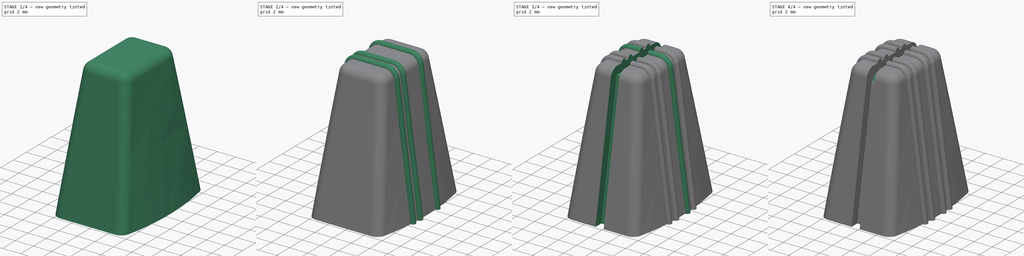
[diagram: build sequence overview — one tinted view per stage of 4, left to right]
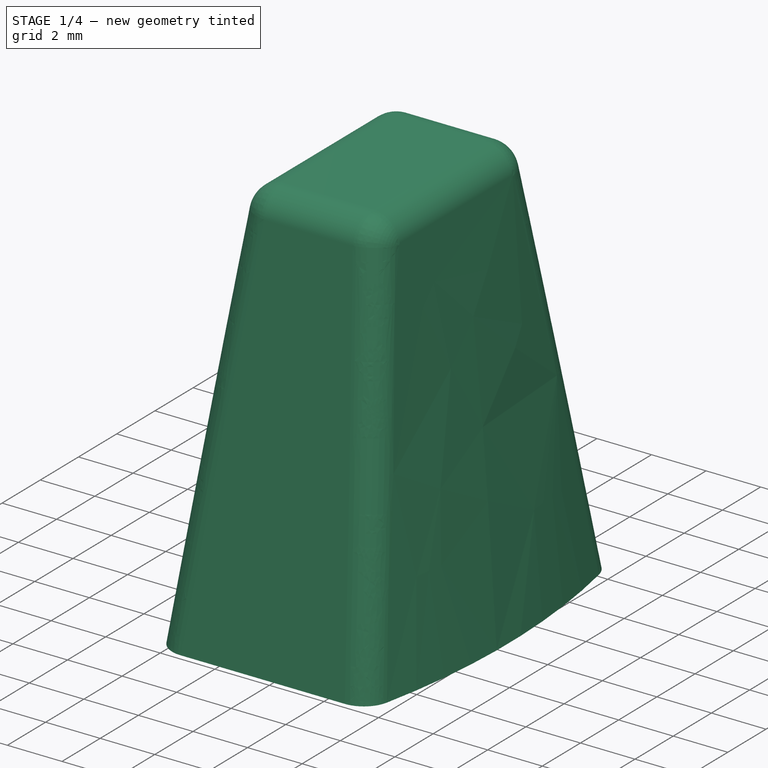
[diagram: stage 1 of 4 — iso view after this stage's code; geometry added in this stage tinted green]
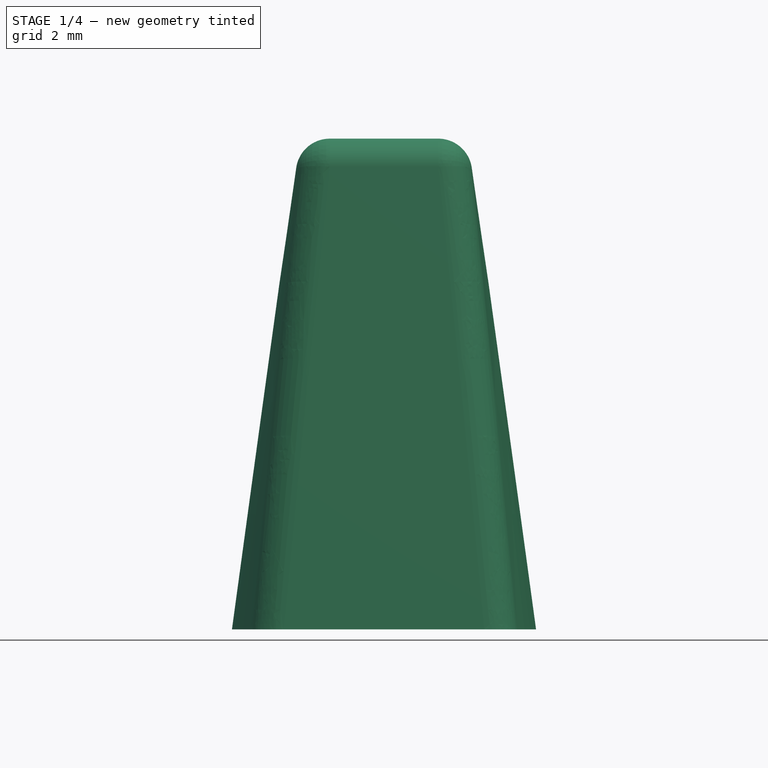
[diagram: stage 1 of 4 — front view after this stage's code; geometry added in this stage tinted green]
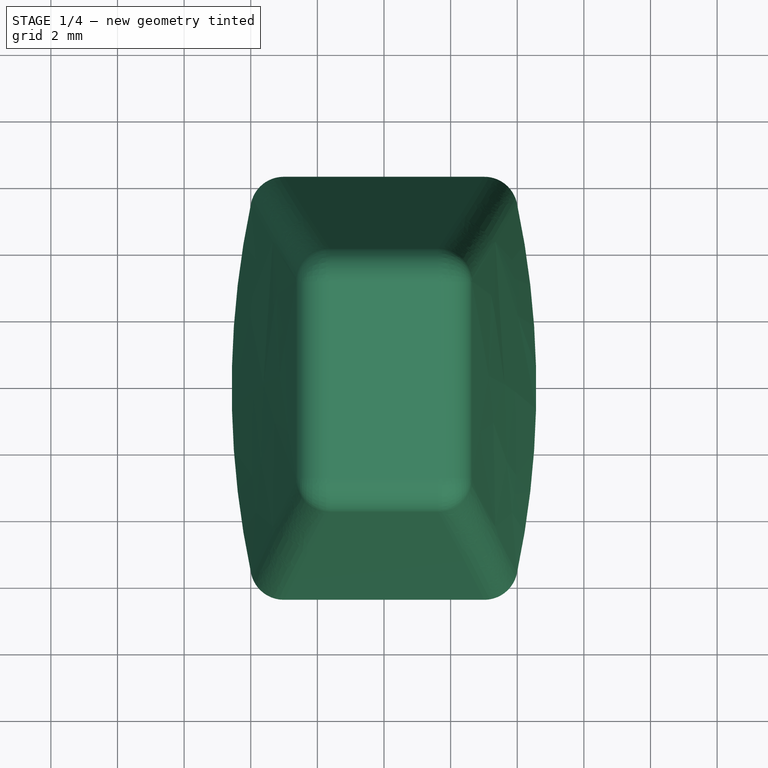
[diagram: stage 1 of 4 — top view after this stage's code; geometry added in this stage tinted green]
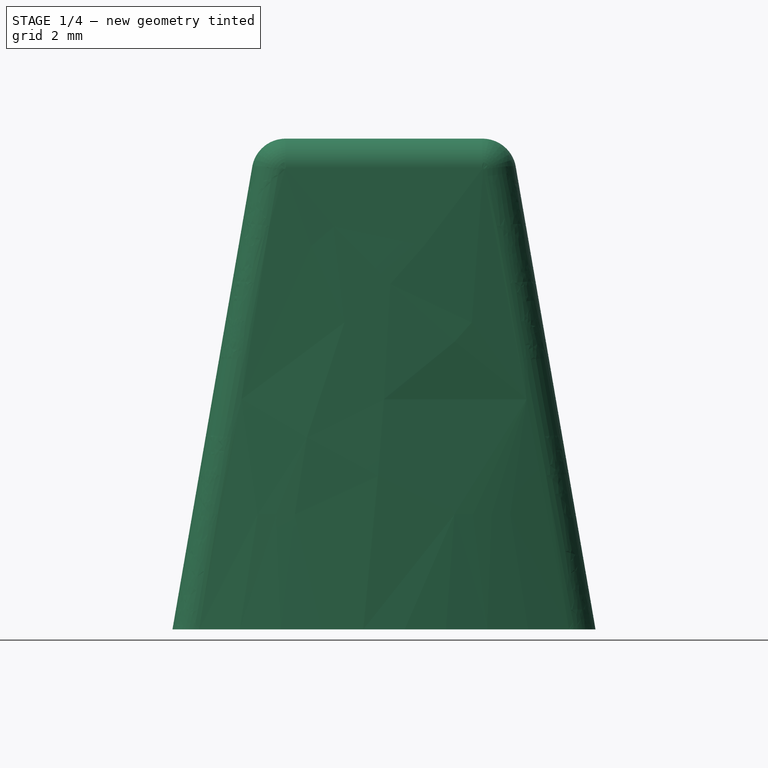
[diagram: stage 1 of 4 — right view after this stage's code; geometry added in this stage tinted green]
FCSTD DOCUMENT  (FreeCAD 0.20R29410 (Git))
Label: ARP_Quartet_Control_Knob
Comment: Slider control knob for the ARP Quartet / Siel Orchestra
License: All rights reserved
LicenseURL: http://en.wikipedia.org/wiki/All_rights_reserved
objects: Sketcher::SketchObject×17, PartDesign::Plane×5, PartDesign::AdditivePipe×4, PartDesign::Fillet×3, PartDesign::AdditiveLoft×1, PartDesign::SubtractivePipe×1, PartDesign::SubtractiveLoft×1, PartDesign::Body×1
note: 43 computed .brp shape members not serialized (recipe doc carries the construction recipe); baked Part::Feature solids carry a one-line shape summary decoded from their .brp

FEATURE [Sketcher::SketchObject] Sketch  label="Base"
  FullyConstrained = true
  MapMode = 5
  Support = -> [XY_Plane]
  sketch-geometry (9):
    g0: LineSegment StartX=-3.81 StartY=6.35 StartZ=0 EndX=3.81 EndY=6.35 EndZ=0
    g1: LineSegment StartX=-3.81 StartY=-6.35 StartZ=0 EndX=3.81 EndY=-6.35 EndZ=0
    g2: ArcOfCircle CenterX=-22.2673 CenterY=0 CenterZ=0 NormalX=0 NormalY=0 NormalZ=1 AngleXU=0 Radius=26.8393 StartAngle=6.04433 EndAngle=6.52204
    g3: ArcOfCircle CenterX=22.2673 CenterY=-1.1e-15 CenterZ=0 NormalX=0 NormalY=0 NormalZ=1 AngleXU=0 Radius=26.8393 StartAngle=2.90273 EndAngle=3.38045
    g4: GeomPoint X=-4.572 Y=0 Z=0
    g5: GeomPoint X=-4.572 Y=0 Z=0
    g6: GeomPoint X=4.572 Y=0 Z=0
    g7: GeomPoint X=4.572 Y=0 Z=0
    g8: GeomPoint X=4.572 Y=0 Z=0
  constraints (20):
    c: Horizontal(g0)
    c: Equal(g0,g1)
    c: DistanceX(g0,g0) = 7.62
    c: Vertical(g0,g1)
    c: Coincident(g2,g0)
    c: Coincident(g2,g1)
    c: Coincident(g3,g0)
    c: Coincident(g3,g1)
    c: DistanceY(g1,g0) = 12.7
    c: Equal(g3,g2)
    c: PointOnObject(g4,g3)
    c: PointOnObject(g5,g-1)
    c: Coincident(g4,g5)
    c: PointOnObject(g6,g2)
    c: PointOnObject(g7,g-1)
    c: Coincident(g8,g6)
    c: Coincident(g7,g6)
    c: DistanceX(g4,g6) = 9.144
    c: Horizontal(g2,g-1)
    c: Symmetric(g1,g1,g-2)
FEATURE [PartDesign::Plane] DatumPlane  label="DatumPlaneTop"
  Length = 60
  MapMode = 2
  Placement = pos=(0,0,14.732) rot=(0,0,1;0rad)
  ResizeMode = 0
  Width = 60
FEATURE [Sketcher::SketchObject] Sketch001  label="Top"
  FullyConstrained = true
  MapMode = 5
  Placement = pos=(0,0,14.732) rot=(0,0,1;0rad)
  Support = -> [DatumPlane]
  sketch-geometry (4):
    g0: LineSegment StartX=-2.54 StartY=3.81 StartZ=0 EndX=2.54 EndY=3.81 EndZ=0
    g1: LineSegment StartX=2.54 StartY=3.81 StartZ=0 EndX=2.54 EndY=-3.81 EndZ=0
    g2: LineSegment StartX=2.54 StartY=-3.81 StartZ=0 EndX=-2.54 EndY=-3.81 EndZ=0
    g3: LineSegment StartX=-2.54 StartY=-3.81 StartZ=0 EndX=-2.54 EndY=3.81 EndZ=0
  constraints (10):
    c: Coincident(g0,g1)
    c: Coincident(g1,g2)
    c: Coincident(g2,g3)
    c: Coincident(g3,g0)
    c: Horizontal(g2)
    c: Vertical(g1)
    c: DistanceX(g0,g0) = 5.08
    c: DistanceY(g1,g0) = 7.62
    c: Symmetric(g0,g0,g-2)
    c: Symmetric(g0,g2,g-1)
FEATURE [PartDesign::AdditiveLoft] AdditiveLoft  label="MainBodyLoft"
  Closed = true
  Profile = -> Sketch
  Ruled = false
  Sections = -> [Sketch001]
FEATURE [PartDesign::Fillet] Fillet
  Base = -> AdditiveLoft [Edge6,Edge7,Edge12,Face3,Edge10,Edge5,Edge11]
  BaseFeature = -> AdditiveLoft
  Radius = 1.016
  Refine = true
  SupportTransform = false
  UseAllEdges = false
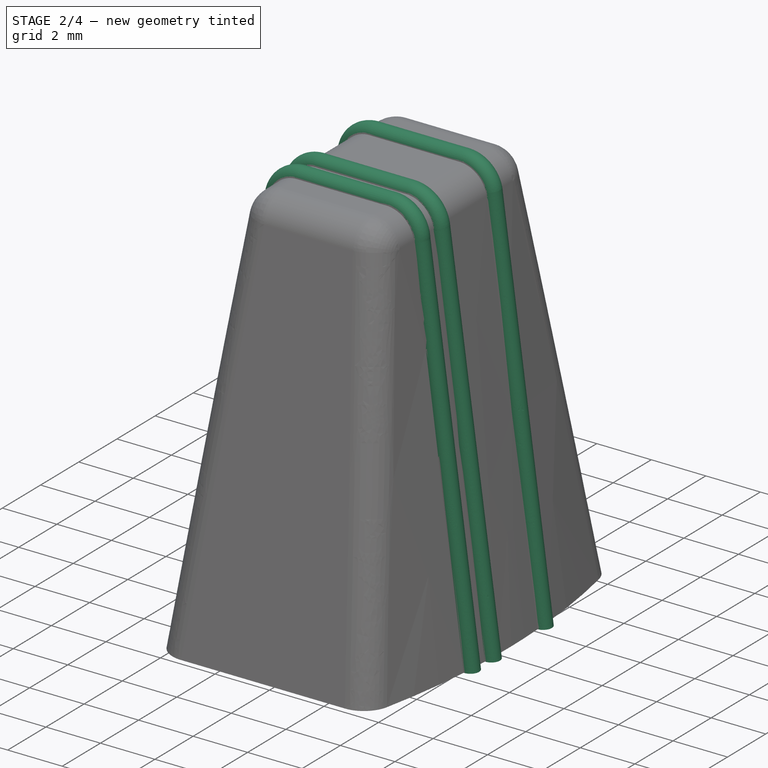
[diagram: stage 2 of 4 — iso view after this stage's code; geometry added in this stage tinted green]
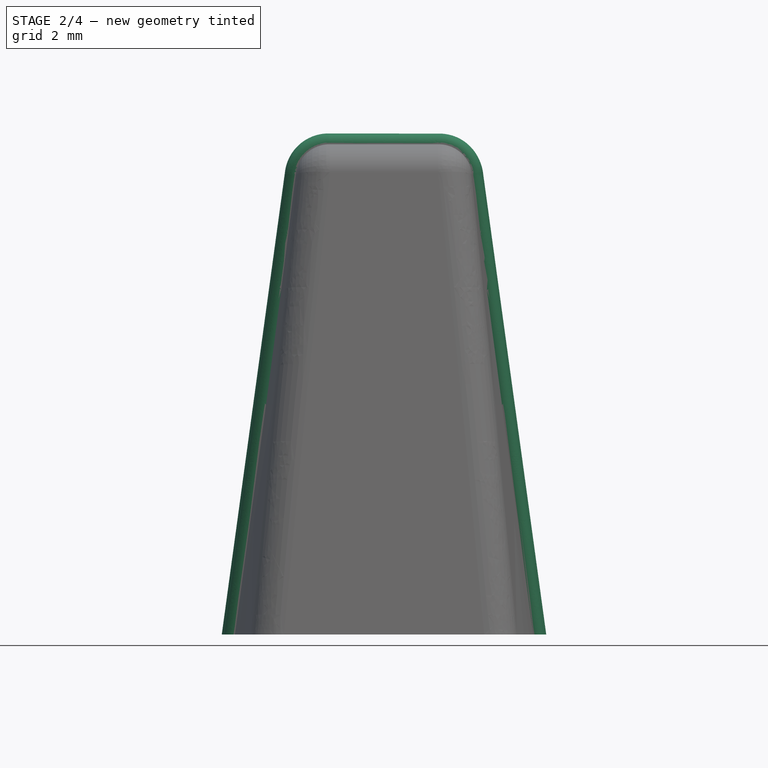
[diagram: stage 2 of 4 — front view after this stage's code; geometry added in this stage tinted green]
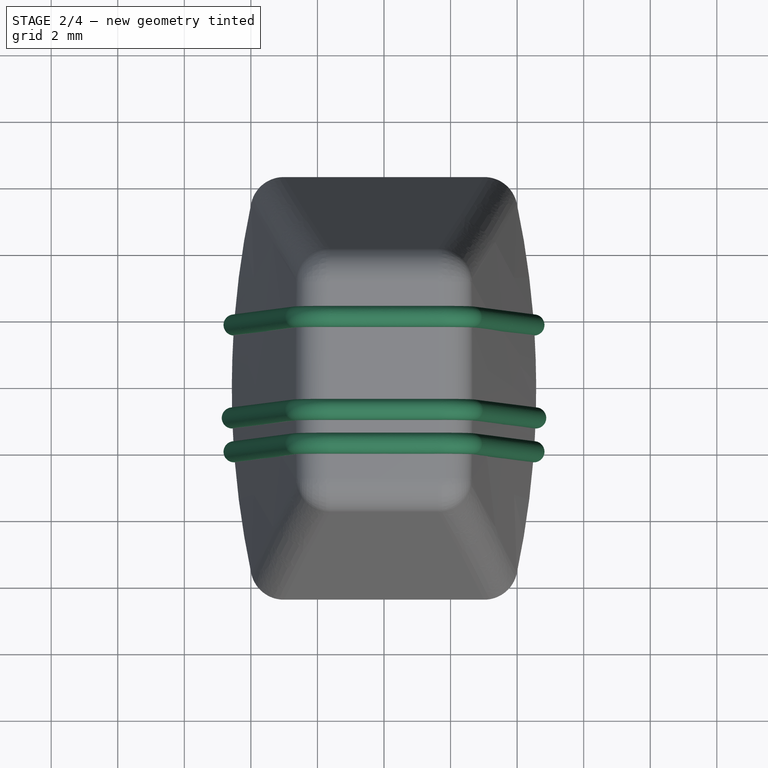
[diagram: stage 2 of 4 — top view after this stage's code; geometry added in this stage tinted green]
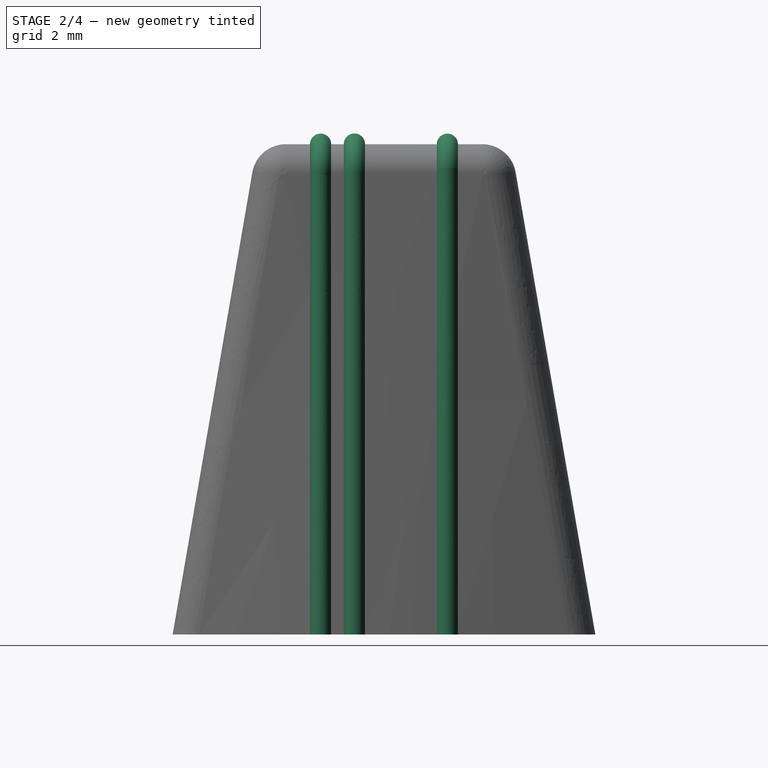
[diagram: stage 2 of 4 — right view after this stage's code; geometry added in this stage tinted green]
FEATURE [PartDesign::Plane] DatumPlane001  label="DatumPlane35"
  AttachmentOffset = pos=(0,0,1.905) rot=(0,0,1;0rad)
  Length = 60
  MapMode = 2
  Placement = pos=(0,-1.905,-4e-16) rot=(1,0,0;1.5708rad)
  ResizeMode = 0
  Support = -> [XZ_Plane]
  Width = 60
FEATURE [Sketcher::SketchObject] Sketch003  label="PipePath35"
  FullyConstrained = false
  MapMode = 5
  Placement = pos=(0,-1.905,-4e-16) rot=(1,0,0;1.5708rad)
  Support = -> [DatumPlane001]
  sketch-geometry (6):
    g0: LineSegment StartX=-4.52822 StartY=0 StartZ=0 EndX=4.57084 EndY=0 EndZ=0
    g1: LineSegment StartX=-4.52822 StartY=0 StartZ=0 EndX=-2.65166 EndY=13.8597 EndZ=0
    g2: LineSegment StartX=4.57084 StartY=0 StartZ=0 EndX=2.65519 EndY=13.8616 EndZ=0
    g3: LineSegment StartX=1.64108 StartY=14.7311 StartZ=0 EndX=-1.64151 EndY=14.7311 EndZ=0
    g4: ArcOfCircle CenterX=-1.6687 CenterY=13.7415 CenterZ=0 NormalX=0 NormalY=0 NormalZ=1 AngleXU=0 Radius=0.990046 StartAngle=1.54333 EndAngle=3.02187
    g5: ArcOfCircle CenterX=1.63453 CenterY=13.6973 CenterZ=0 NormalX=0 NormalY=0 NormalZ=1 AngleXU=0 Radius=1.03381 StartAngle=0.159613 EndAngle=1.56446
  constraints (9):
    c: PointOnObject(g0,g-1)
    c: Horizontal(g0)
    c: Coincident(g1,g0)
    c: Coincident(g2,g0)
    c: Horizontal(g3)
    c: Coincident(g4,g1)
    c: Coincident(g4,g3)
    c: Coincident(g5,g2)
    c: Coincident(g5,g3)
FEATURE [Sketcher::SketchObject] Sketch004  label="Bump_2_left"
  ExternalGeometry = -> [Fillet]
  FullyConstrained = true
  MapMode = 5
  Placement = pos=(0,0,0) rot=(1,0,0;3.14159rad)
  Support = -> [Fillet]
  sketch-geometry (2):
    g0: GeomPoint X=-4.55727 Y=0.889 Z=0
    g1: Circle CenterX=-4.55727 CenterY=0.889 CenterZ=0 NormalX=0 NormalY=0 NormalZ=1 AngleXU=0 Radius=0.3175
  constraints (4):
    c: PointOnObject(g0,g-3)
    c: DistanceY(g-1,g0) = 0.889
    c: Radius(g1) = 0.3175
    c: Coincident(g1,g0)
FEATURE [Sketcher::SketchObject] Sketch005  label="Bump_2_right"
  ExternalGeometry = -> [Fillet]
  FullyConstrained = true
  MapMode = 5
  Placement = pos=(0,0,0) rot=(1,0,0;3.14159rad)
  Support = -> [Fillet]
  sketch-geometry (2):
    g0: GeomPoint X=4.55727 Y=0.889 Z=0
    g1: Circle CenterX=4.55727 CenterY=0.889 CenterZ=0 NormalX=0 NormalY=0 NormalZ=1 AngleXU=0 Radius=0.3175
  constraints (4):
    c: PointOnObject(g0,g-3)
    c: Radius(g1) = 0.3175
    c: Coincident(g0,g1)
    c: DistanceY(g-1,g1) = 0.889
FEATURE [PartDesign::AdditivePipe] AdditivePipe  label="AdditivePipe+35"
  AuxilleryCurvelinear = true
  AuxillerySpineTangent = false
  BaseFeature = -> Fillet
  Binormal = (0,0,0)
  Mode = 0
  Profile = -> Sketch004
  Sections = -> [Sketch005]
  Spine = -> Sketch003 [Edge6,Edge5,Edge4,Edge3,Edge2]
  SpineTangent = false
  Transformation = 1
  Transition = 0
FEATURE [Sketcher::SketchObject] Sketch006  label="Bump_1_left"
  ExternalGeometry = -> [AdditivePipe]
  FullyConstrained = true
  MapMode = 5
  Placement = pos=(0,0,0) rot=(1,0,0;3.14159rad)
  Support = -> [AdditivePipe]
  sketch-geometry (2):
    g0: GeomPoint X=-4.50431 Y=1.905 Z=0
    g1: Circle CenterX=-4.50431 CenterY=1.905 CenterZ=0 NormalX=0 NormalY=0 NormalZ=1 AngleXU=0 Radius=0.3175
  constraints (4):
    c: PointOnObject(g0,g-3)
    c: Coincident(g1,g0)
    c: DistanceY(g-1,g1) = 1.905
    c: Radius(g1) = 0.3175
FEATURE [Sketcher::SketchObject] Sketch007  label="Bump_1_right"
  ExternalGeometry = -> [AdditivePipe]
  FullyConstrained = true
  MapMode = 5
  Placement = pos=(0,0,0) rot=(1,0,0;3.14159rad)
  Support = -> [AdditivePipe]
  sketch-geometry (2):
    g0: GeomPoint X=4.50431 Y=1.905 Z=0
    g1: Circle CenterX=4.50431 CenterY=1.905 CenterZ=0 NormalX=0 NormalY=0 NormalZ=1 AngleXU=0 Radius=0.3175
  constraints (4):
    c: PointOnObject(g0,g-3)
    c: DistanceY(g-1,g0) = 1.905
    c: Coincident(g1,g0)
    c: Radius(g1) = 0.3175
FEATURE [PartDesign::Plane] DatumPlane002  label="DatumPlane75"
  AttachmentOffset = pos=(0,0,1.905) rot=(0,0,1;0rad)
  Length = 60
  MapMode = 3
  Placement = pos=(0,-1.905,4e-16) rot=(1,0,0;1.5708rad)
  ResizeMode = 0
  Support = -> [Fillet]
  Width = 60
FEATURE [Sketcher::SketchObject] Sketch008  label="PipPath75"
  FullyConstrained = false
  MapMode = 5
  Placement = pos=(0,-1.905,4e-16) rot=(1,0,0;1.5708rad)
  Support = -> [DatumPlane002]
  sketch-geometry (5):
    g0: LineSegment StartX=-4.48947 StartY=0 StartZ=0 EndX=-2.64271 EndY=13.8139 EndZ=0
    g1: LineSegment StartX=4.48475 StartY=0 StartZ=0 EndX=2.62975 EndY=13.8025 EndZ=0
    g2: ArcOfCircle CenterX=1.66598 CenterY=13.7537 CenterZ=0 NormalX=0 NormalY=0 NormalZ=1 AngleXU=0 Radius=0.965004 StartAngle=0.050577 EndAngle=1.59892
    g3: ArcOfCircle CenterX=-1.61029 CenterY=13.6777 CenterZ=0 NormalX=0 NormalY=0 NormalZ=1 AngleXU=0 Radius=1.04137 StartAngle=1.60746 EndAngle=3.01037
    g4: LineSegment StartX=-1.64847 StartY=14.7183 StartZ=0 EndX=1.63885 EndY=14.7183 EndZ=0
  constraints (7):
    c: PointOnObject(g0,g-1)
    c: PointOnObject(g1,g-1)
    c: Coincident(g2,g1)
    c: Coincident(g3,g0)
    c: Coincident(g4,g3)
    c: Coincident(g4,g2)
    c: Horizontal(g4)
FEATURE [PartDesign::AdditivePipe] AdditivePipe001  label="AdditivePipe+75"
  AuxilleryCurvelinear = true
  AuxillerySpineTangent = false
  BaseFeature = -> AdditivePipe
  Binormal = (0,0,0)
  Mode = 0
  Profile = -> Sketch007
  Sections = -> [Sketch006]
  Spine = -> Sketch008 [Edge5,Edge4,Edge3,Edge2,Edge1]
  SpineTangent = false
  Transformation = 1
  Transition = 0
FEATURE [Sketcher::SketchObject] Sketch009  label="Bump_3_left"
  ExternalGeometry = -> [AdditivePipe001]
  FullyConstrained = true
  MapMode = 5
  Placement = pos=(0,0,0) rot=(1,0,0;3.14159rad)
  Support = -> [AdditivePipe001]
  sketch-geometry (2):
    g0: GeomPoint X=-4.55727 Y=-0.889 Z=0
    g1: Circle CenterX=-4.55727 CenterY=-0.889 CenterZ=0 NormalX=0 NormalY=0 NormalZ=1 AngleXU=0 Radius=0.3175
  constraints (4):
    c: PointOnObject(g0,g-3)
    c: Coincident(g1,g0)
    c: DistanceY(g1,g-1) = 0.889
    c: Radius(g1) = 0.3175
FEATURE [Sketcher::SketchObject] Sketch011  label="Bump_4_left"
  FullyConstrained = false
  MapMode = 5
  Placement = pos=(0,0,0) rot=(1,0,0;3.14159rad)
  sketch-geometry (2):
    g0: Circle CenterX=-4.50431 CenterY=-1.905 CenterZ=0 NormalX=0 NormalY=0 NormalZ=1 AngleXU=0 Radius=0.3175
    g1: GeomPoint X=-4.50431 Y=-1.905 Z=0
  constraints (3):
    c: Radius(g0) = 0.3175
    c: DistanceY(g1,g-1) = 1.905
    c: Coincident(g0,g1)
FEATURE [Sketcher::SketchObject] Sketch012  label="Bump_4_right"
  FullyConstrained = false
  MapMode = 5
  Placement = pos=(0,0,0) rot=(1,0,0;3.14159rad)
  sketch-geometry (2):
    g0: GeomPoint X=4.50431 Y=-1.905 Z=0
    g1: Circle CenterX=4.50431 CenterY=-1.905 CenterZ=0 NormalX=0 NormalY=0 NormalZ=1 AngleXU=0 Radius=0.3175
  constraints (3):
    c: DistanceY(g0,g-1) = 1.905
    c: Coincident(g1,g0)
    c: Radius(g1) = 0.3175
FEATURE [PartDesign::AdditivePipe] AdditivePipe003  label="AdditivePipe-75"
  AuxilleryCurvelinear = true
  AuxillerySpineTangent = false
  BaseFeature = -> AdditivePipe001
  Binormal = (0,0,0)
  Mode = 0
  Profile = -> Sketch011
  Sections = -> [Sketch012]
  Spine = -> Sketch008 [Edge5,Edge4,Edge3,Edge2,Edge1]
  SpineTangent = false
  Transformation = 1
  Transition = 1
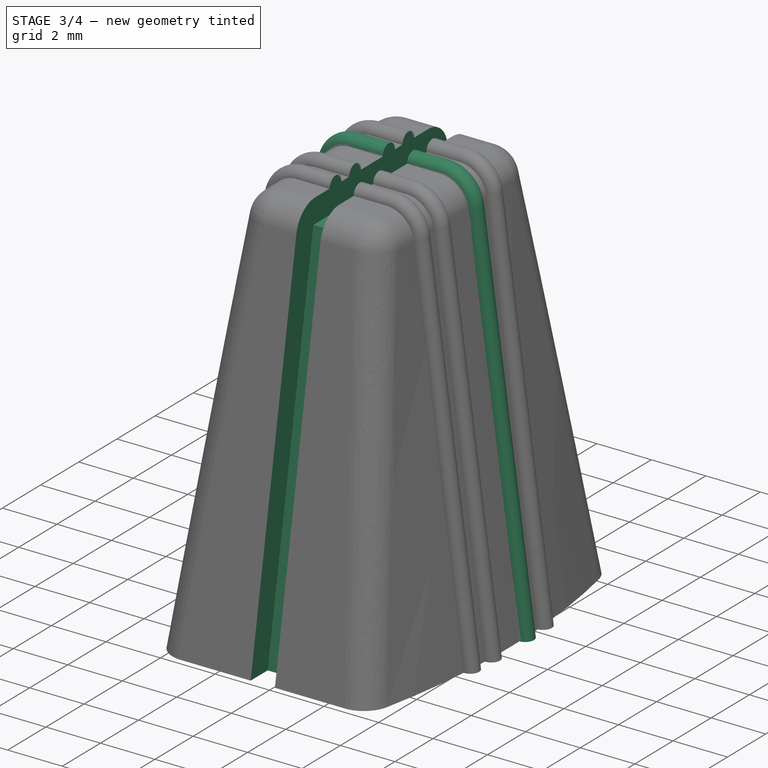
[diagram: stage 3 of 4 — iso view after this stage's code; geometry added in this stage tinted green]
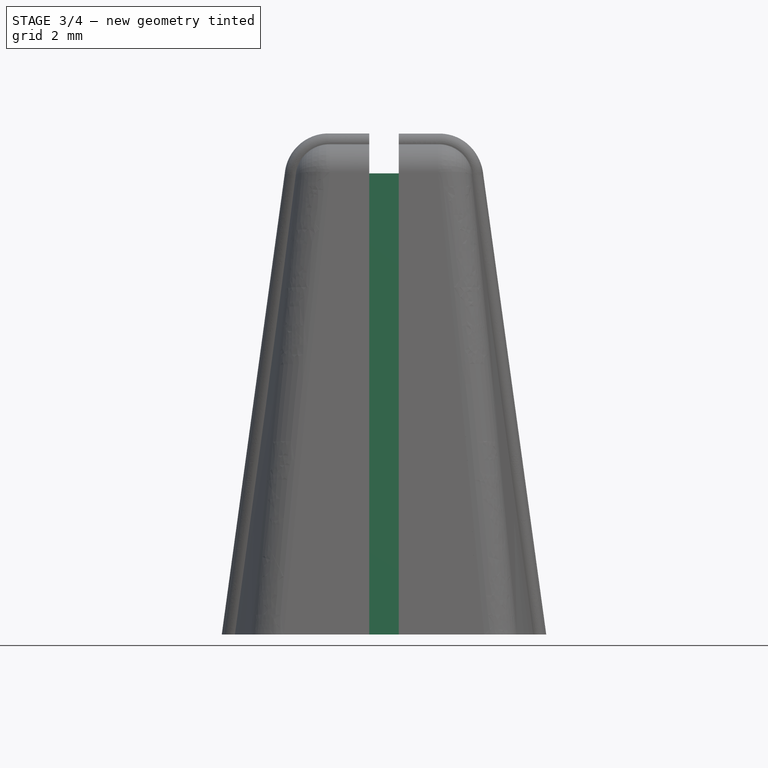
[diagram: stage 3 of 4 — front view after this stage's code; geometry added in this stage tinted green]
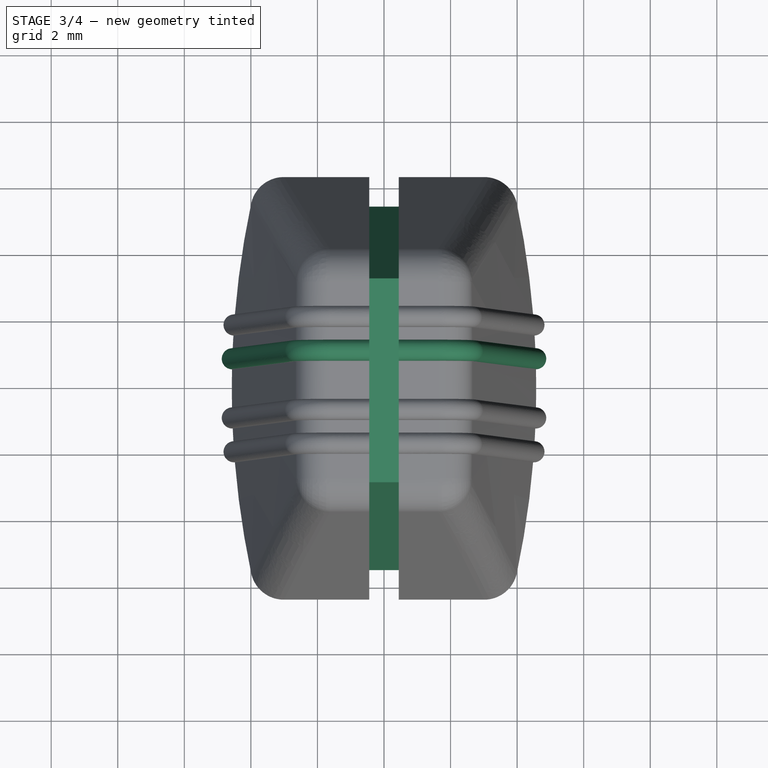
[diagram: stage 3 of 4 — top view after this stage's code; geometry added in this stage tinted green]
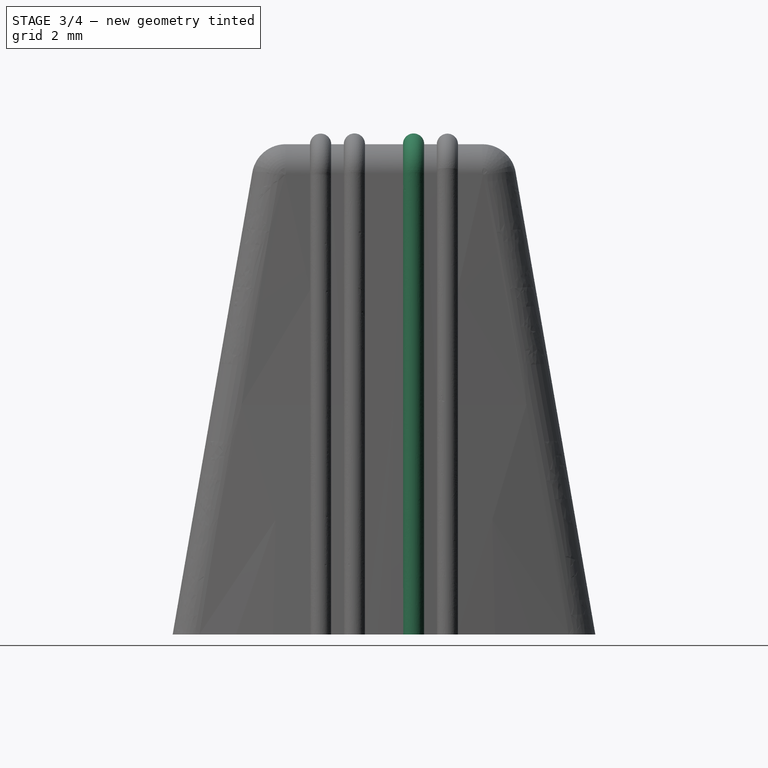
[diagram: stage 3 of 4 — right view after this stage's code; geometry added in this stage tinted green]
FEATURE [Sketcher::SketchObject] Sketch010  label="Bump_3_right"
  ExternalGeometry = -> [AdditivePipe001]
  FullyConstrained = true
  MapMode = 5
  Placement = pos=(0,0,0) rot=(1,0,0;3.14159rad)
  Support = -> [AdditivePipe001]
  sketch-geometry (2):
    g0: Circle CenterX=4.55727 CenterY=-0.889 CenterZ=0 NormalX=0 NormalY=0 NormalZ=1 AngleXU=0 Radius=0.3175
    g1: GeomPoint X=4.55727 Y=-0.889 Z=0
  constraints (4):
    c: Radius(g0) = 0.3175
    c: PointOnObject(g1,g-3)
    c: DistanceY(g1,g-1) = 0.889
    c: Coincident(g0,g1)
FEATURE [PartDesign::AdditivePipe] AdditivePipe004  label="AdditivePipe-35"
  AuxilleryCurvelinear = true
  AuxillerySpineTangent = false
  BaseFeature = -> AdditivePipe003
  Binormal = (0,0,0)
  Mode = 0
  Profile = -> Sketch009
  Sections = -> [Sketch010]
  Spine = -> Sketch003 [Edge6,Edge5,Edge4,Edge3,Edge2]
  SpineTangent = false
  Transformation = 1
  Transition = 0
FEATURE [Sketcher::SketchObject] Sketch013  label="GrooveBottom"
  ExternalGeometry = -> [AdditivePipe004]
  FullyConstrained = true
  MapMode = 5
  Placement = pos=(0,0,0) rot=(1,0,0;3.14159rad)
  Support = -> [AdditivePipe004]
  sketch-geometry (4):
    g0: LineSegment StartX=-0.4445 StartY=6.858 StartZ=0 EndX=0.4445 EndY=6.858 EndZ=0
    g1: LineSegment StartX=0.4445 StartY=6.858 StartZ=0 EndX=0.4445 EndY=5.461 EndZ=0
    g2: LineSegment StartX=0.4445 StartY=5.461 StartZ=0 EndX=-0.4445 EndY=5.461 EndZ=0
    g3: LineSegment StartX=-0.4445 StartY=5.461 StartZ=0 EndX=-0.4445 EndY=6.858 EndZ=0
  constraints (11):
    c: Coincident(g0,g1)
    c: Coincident(g1,g2)
    c: Coincident(g2,g3)
    c: Coincident(g3,g0)
    c: Horizontal(g2)
    c: Vertical(g1)
    c: Vertical(g3)
    c: Symmetric(g0,g0,g-2)
    c: DistanceX(g0,g0) = 0.889
    c: DistanceY(g-3,g0) = 0.508
    c: DistanceY(g1,g-3) = 0.889
FEATURE [Sketcher::SketchObject] Sketch014  label="GrooveTop"
  ExternalGeometry = -> [AdditivePipe004]
  FullyConstrained = true
  MapMode = 5
  Placement = pos=(0,0,0) rot=(1,0,0;3.14159rad)
  Support = -> [AdditivePipe004]
  sketch-geometry (4):
    g0: LineSegment StartX=-0.4445 StartY=-5.461 StartZ=0 EndX=0.4445 EndY=-5.461 EndZ=0
    g1: LineSegment StartX=0.4445 StartY=-5.461 StartZ=0 EndX=0.4445 EndY=-6.858 EndZ=0
    g2: LineSegment StartX=0.4445 StartY=-6.858 StartZ=0 EndX=-0.4445 EndY=-6.858 EndZ=0
    g3: LineSegment StartX=-0.4445 StartY=-6.858 StartZ=0 EndX=-0.4445 EndY=-5.461 EndZ=0
  constraints (11):
    c: Coincident(g0,g1)
    c: Coincident(g1,g2)
    c: Coincident(g2,g3)
    c: Coincident(g3,g0)
    c: Horizontal(g0)
    c: Vertical(g1)
    c: Vertical(g3)
    c: DistanceX(g2,g1) = 0.889
    c: Symmetric(g2,g1,g-2)
    c: DistanceY(g1,g-3) = 0.508
    c: DistanceY(g-3,g0) = 0.889
FEATURE [PartDesign::Plane] DatumPlane003  label="GrooveDatum"
  AttachmentOffset = pos=(0,0,0.508) rot=(0,0,1;0rad)
  Length = 60
  MapMode = 4
  Placement = pos=(0.508,0,0) rot=(0.57735,0.57735,0.57735;2.0944rad)
  ResizeMode = 0
  Support = -> [AdditivePipe004]
  Width = 60
FEATURE [Sketcher::SketchObject] Sketch015  label="GroovePath"
  FullyConstrained = false
  MapMode = 5
  Placement = pos=(0.508,0,0) rot=(0.57735,0.57735,0.57735;2.0944rad)
  Support = -> [DatumPlane003]
  sketch-geometry (4):
    g0: LineSegment StartX=-6.35 StartY=0 StartZ=0 EndX=-3.80121 EndY=14.732 EndZ=0
    g1: LineSegment StartX=6.35 StartY=0 StartZ=0 EndX=3.80121 EndY=14.732 EndZ=0
    g2: LineSegment StartX=-3.80121 StartY=14.732 StartZ=0 EndX=3.80121 EndY=14.732 EndZ=0
    g3: LineSegment StartX=-6.35 StartY=0 StartZ=0 EndX=6.35 EndY=0 EndZ=0
  constraints (9):
    c: PointOnObject(g0,g-1)
    c: Symmetric(g0,g1,g-2)
    c: Symmetric(g2,g2,g-2)
    c: Coincident(g3,g0)
    c: Coincident(g3,g1)
    c: DistanceX(g0,g1) = 12.7
    c: DistanceY(g-1,g2) = 14.732
    c: Coincident(g0,g2)
    c: Coincident(g1,g2)
FEATURE [PartDesign::SubtractivePipe] SubtractivePipe  label="Groove"
  AuxilleryCurvelinear = true
  AuxillerySpineTangent = false
  BaseFeature = -> AdditivePipe004
  Binormal = (0,0,0)
  Mode = 0
  Profile = -> Sketch014 [Edge3]
  Sections = -> [Sketch013]
  Spine = -> Sketch015 [Edge3,Edge2,Edge1]
  SpineTangent = false
  Transformation = 1
  Transition = 2
FEATURE [Sketcher::SketchObject] Sketch016  label="InternalBottom"
  FullyConstrained = true
  MapMode = 5
  Placement = pos=(0,0,0) rot=(1,0,0;3.14159rad)
  Support = -> [SubtractivePipe]
  sketch-geometry (20):
    g0: LineSegment StartX=-2.8575 StartY=4.318 StartZ=0 EndX=2.8575 EndY=4.318 EndZ=0
    g1: LineSegment StartX=2.8575 StartY=4.318 StartZ=0 EndX=2.8575 EndY=2.032 EndZ=0
    g2: LineSegment StartX=2.8575 StartY=2.032 StartZ=0 EndX=1.27 EndY=2.032 EndZ=0
    g3: LineSegment StartX=1.27 StartY=2.032 StartZ=0 EndX=1.27 EndY=0.635 EndZ=0
    g4: LineSegment StartX=1.27 StartY=0.635 StartZ=0 EndX=2.032 EndY=0.635 EndZ=0
    g5: LineSegment StartX=2.032 StartY=0.635 StartZ=0 EndX=2.032 EndY=-0.635 EndZ=0
    g6: LineSegment StartX=2.032 StartY=-0.635 StartZ=0 EndX=1.27 EndY=-0.635 EndZ=0
    g7: LineSegment StartX=1.27 StartY=-0.635 StartZ=0 EndX=1.27 EndY=-2.032 EndZ=0
    g8: LineSegment StartX=1.27 StartY=-2.032 StartZ=0 EndX=2.8575 EndY=-2.032 EndZ=0
    g9: LineSegment StartX=2.8575 StartY=-2.032 StartZ=0 EndX=2.8575 EndY=-4.318 EndZ=0
    g10: LineSegment StartX=2.8575 StartY=-4.318 StartZ=0 EndX=-2.8575 EndY=-4.318 EndZ=0
    g11: LineSegment StartX=-2.8575 StartY=-4.318 StartZ=0 EndX=-2.8575 EndY=-2.032 EndZ=0
    g12: LineSegment StartX=-2.8575 StartY=-2.032 StartZ=0 EndX=-1.27 EndY=-2.032 EndZ=0
    g13: LineSegment StartX=-1.27 StartY=-2.032 StartZ=0 EndX=-1.27 EndY=-0.635 EndZ=0
    g14: LineSegment StartX=-1.27 StartY=-0.635 StartZ=0 EndX=-2.032 EndY=-0.635 EndZ=0
    g15: LineSegment StartX=-2.032 StartY=-0.635 StartZ=0 EndX=-2.032 EndY=0.635 EndZ=0
    g16: LineSegment StartX=-2.032 StartY=0.635 StartZ=0 EndX=-1.27 EndY=0.635 EndZ=0
    g17: LineSegment StartX=-1.27 StartY=0.635 StartZ=0 EndX=-1.27 EndY=2.032 EndZ=0
    g18: LineSegment StartX=-1.27 StartY=2.032 StartZ=0 EndX=-2.8575 EndY=2.032 EndZ=0
    g19: LineSegment StartX=-2.8575 StartY=2.032 StartZ=0 EndX=-2.8575 EndY=4.318 EndZ=0
  constraints (53):
    c: Coincident(g1,g0)
    c: Vertical(g1)
    c: Coincident(g2,g1)
    c: Horizontal(g2)
    c: Coincident(g3,g2)
    c: Vertical(g3)
    c: Vertical(g7)
    c: Horizontal(g8)
    c: Coincident(g9,g8)
    c: Coincident(g10,g9)
    c: Vertical(g11)
    c: Horizontal(g12)
    c: Coincident(g14,g13)
    c: Vertical(g15)
    c: Coincident(g16,g15)
    c: Horizontal(g16)
    c: Coincident(g17,g16)
    c: Vertical(g17)
    c: Horizontal(g18)
    c: Coincident(g19,g0)
    c: Vertical(g19)
    c: Vertical(g13)
    c: DistanceX(g0,g0) = 5.715
    c: Coincident(g18,g19)
    c: Symmetric(g0,g0,g-2)
    c: Coincident(g11,g10)
    c: Symmetric(g10,g9,g-2)
    c: Coincident(g12,g11)
    c: Horizontal(g4)
    c: Coincident(g4,g5)
    c: Coincident(g6,g5)
    c: Horizontal(g6)
    c: Coincident(g14,g15)
    c: Horizontal(g14)
    c: Vertical(g16,g13)
    c: Coincident(g6,g7)
    c: Coincident(g8,g7)
    c: Coincident(g12,g13)
    c: Coincident(g18,g17)
    c: Coincident(g3,g4)
    c: Vertical(g3,g6)
    c: DistanceY(g8,g1) = 4.064
    c: Symmetric(g1,g8,g-1)
    c: Horizontal(g13,g6)
    c: Horizontal(g12,g7)
    c: DistanceX(g17,g2) = 2.54
    c: Symmetric(g17,g2,g-2)
    c: DistanceY(g10,g0) = 8.636
    c: Symmetric(g0,g10,g-1)
    c: DistanceY(g5,g4) = 1.27
    c: Symmetric(g4,g5,g-1)
    c: Symmetric(g15,g4,g-2)
    c: DistanceX(g15,g4) = 4.064
FEATURE [PartDesign::Plane] DatumPlane004  label="InternalTopDatum"
  AttachmentOffset = pos=(0,0,12.065) rot=(0,0,1;0rad)
  Length = 60
  MapMode = 2
  Placement = pos=(0,0,12.065) rot=(0,0,1;0rad)
  ResizeMode = 0
  Support = -> [SubtractivePipe]
  Width = 60
FEATURE [Sketcher::SketchObject] Sketch017  label="InternalTop"
  FullyConstrained = true
  MapMode = 5
  Placement = pos=(0,0,12.065) rot=(0,0,1;0rad)
  Support = -> [DatumPlane004]
  sketch-geometry (20):
    g0: LineSegment StartX=-1.27 StartY=2.032 StartZ=0 EndX=-1.27 EndY=0.635 EndZ=0
    g1: LineSegment StartX=-1.27 StartY=0.635 StartZ=0 EndX=-2.032 EndY=0.635 EndZ=0
    g2: LineSegment StartX=-2.032 StartY=0.635 StartZ=0 EndX=-2.032 EndY=-0.635 EndZ=0
    g3: LineSegment StartX=-2.032 StartY=-0.635 StartZ=0 EndX=-1.27 EndY=-0.635 EndZ=0
    g4: LineSegment StartX=-1.27 StartY=-0.635 StartZ=0 EndX=-1.27 EndY=-2.032 EndZ=0
    g5: LineSegment StartX=1.27 StartY=2.032 StartZ=0 EndX=1.27 EndY=0.635 EndZ=0
    g6: LineSegment StartX=1.27 StartY=0.635 StartZ=0 EndX=2.032 EndY=0.635 EndZ=0
    g7: LineSegment StartX=2.032 StartY=0.635 StartZ=0 EndX=2.032 EndY=-0.635 EndZ=0
    g8: LineSegment StartX=2.032 StartY=-0.635 StartZ=0 EndX=1.27 EndY=-0.635 EndZ=0
    g9: LineSegment StartX=1.27 StartY=-0.635 StartZ=0 EndX=1.27 EndY=-2.032 EndZ=0
    g10: LineSegment StartX=-1.27 StartY=2.032 StartZ=0 EndX=-2.032 EndY=2.032 EndZ=0
    g11: LineSegment StartX=-2.032 StartY=2.032 StartZ=0 EndX=-2.032 EndY=2.794 EndZ=0
    g12: LineSegment StartX=-2.032 StartY=2.794 StartZ=0 EndX=2.032 EndY=2.794 EndZ=0
    g13: LineSegment StartX=2.032 StartY=2.794 StartZ=0 EndX=2.032 EndY=2.032 EndZ=0
    g14: LineSegment StartX=2.032 StartY=2.032 StartZ=0 EndX=1.27 EndY=2.032 EndZ=0
    g15: LineSegment StartX=-1.27 StartY=-2.032 StartZ=0 EndX=-2.032 EndY=-2.032 EndZ=0
    g16: LineSegment StartX=-2.032 StartY=-2.032 StartZ=0 EndX=-2.032 EndY=-2.794 EndZ=0
    g17: LineSegment StartX=-2.032 StartY=-2.794 StartZ=0 EndX=2.032 EndY=-2.794 EndZ=0
    g18: LineSegment StartX=2.032 StartY=-2.794 StartZ=0 EndX=2.032 EndY=-2.032 EndZ=0
    g19: LineSegment StartX=2.032 StartY=-2.032 StartZ=0 EndX=1.27 EndY=-2.032 EndZ=0
  constraints (54):
    c: Horizontal(g14)
    c: Coincident(g12,g11)
    c: Coincident(g13,g12)
    c: Vertical(g11)
    c: Vertical(g13)
    c: Vertical(g0)
    c: Vertical(g5)
    c: Vertical(g7)
    c: Vertical(g2)
    c: Vertical(g4)
    c: Vertical(g16)
    c: Vertical(g18)
    c: Horizontal(g10)
    c: Horizontal(g1)
    c: Horizontal(g3)
    c: Horizontal(g8)
    c: Horizontal(g6)
    c: Horizontal(g15)
    c: Horizontal(g19)
    c: Horizontal(g17)
    c: Coincident(g5,g14)
    c: Coincident(g5,g6)
    c: Coincident(g13,g14)
    c: Coincident(g6,g7)
    c: Coincident(g9,g8)
    c: Coincident(g7,g8)
    c: Coincident(g9,g19)
    c: Coincident(g19,g18)
    c: Coincident(g17,g18)
    c: Coincident(g17,g16)
    c: Coincident(g16,g15)
    c: Coincident(g15,g4)
    c: Coincident(g3,g4)
    c: Coincident(g1,g2)
    c: Coincident(g2,g3)
    c: Coincident(g10,g0)
    c: Coincident(g1,g0)
    c: Coincident(g10,g11)
    c: Symmetric(g11,g12,g-2)
    c: Vertical(g13,g18)
    c: Vertical(g0,g3)
    c: Horizontal(g8,g3)
    c: Horizontal(g9,g4)
    c: Symmetric(g0,g5,g-2)
    c: Symmetric(g5,g8,g-1)
    c: Symmetric(g5,g9,g-1)
    c: DistanceY(g7,g6) = 1.27
    c: Symmetric(g1,g6,g-2)
    c: DistanceX(g1,g6) = 4.064
    c: DistanceY(g15,g10) = 4.064
    c: Symmetric(g11,g16,g-1)
    c: DistanceX(g0,g5) = 2.54
    c: DistanceY(g16,g11) = 5.588
    c: Vertical(g10,g1)
FEATURE [PartDesign::SubtractiveLoft] SubtractiveLoft  label="InternalCutOutLoft"
  BaseFeature = -> SubtractivePipe
  Closed = false
  Profile = -> Sketch016
  Ruled = false
  Sections = -> [Sketch017]
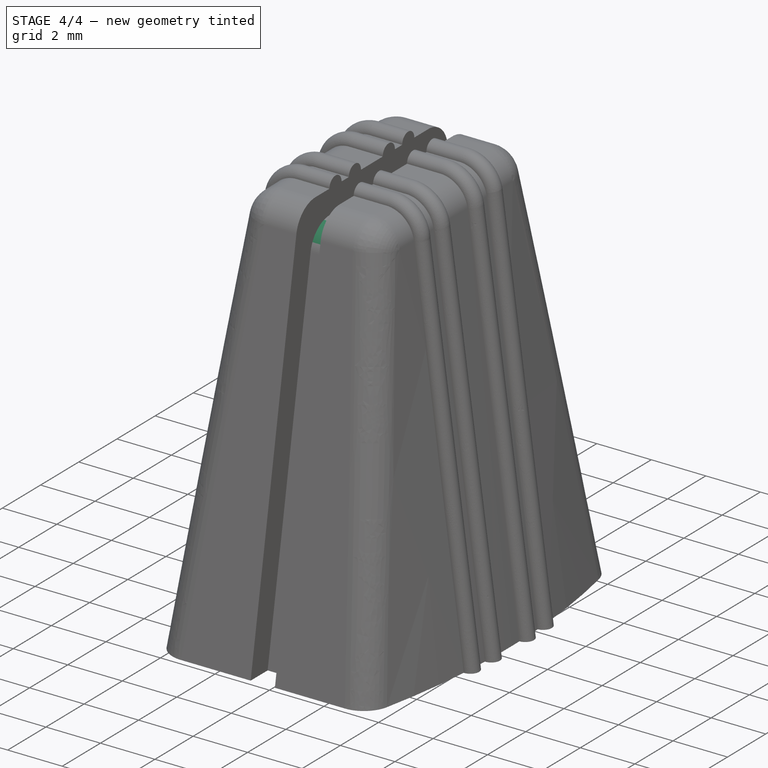
[diagram: stage 4 of 4 — iso view after this stage's code; geometry added in this stage tinted green]
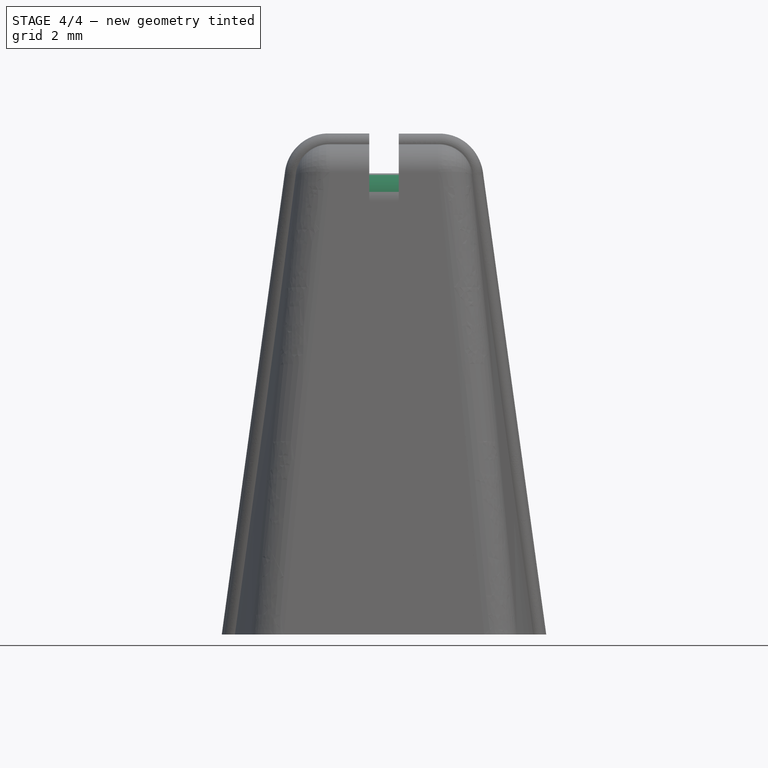
[diagram: stage 4 of 4 — front view after this stage's code; geometry added in this stage tinted green]
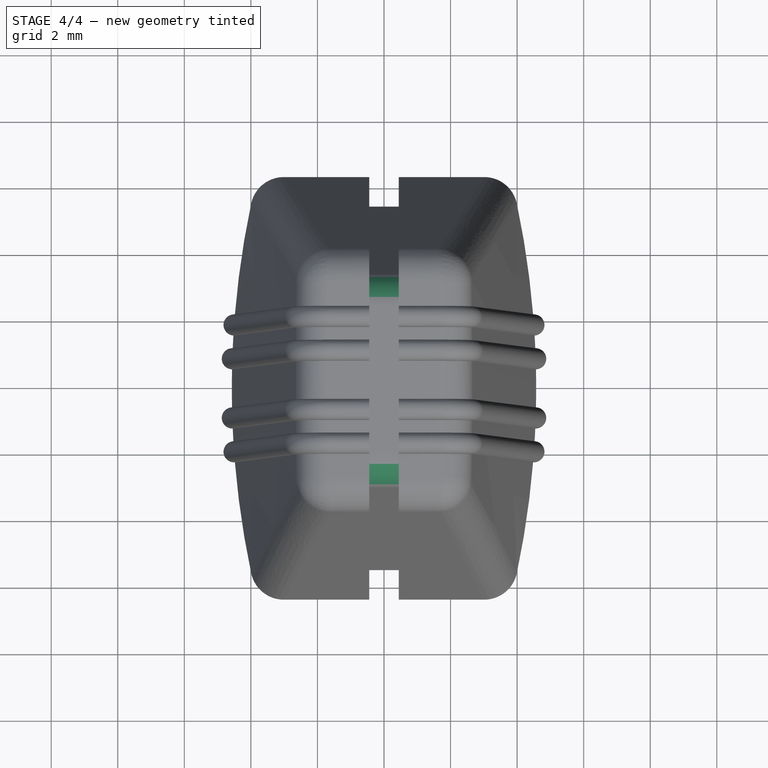
[diagram: stage 4 of 4 — top view after this stage's code; geometry added in this stage tinted green]
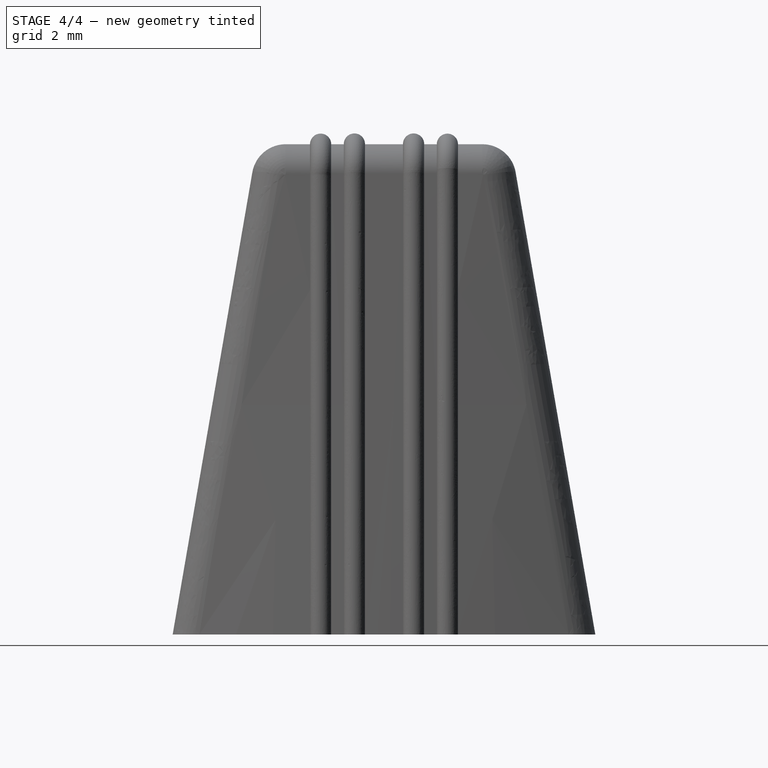
[diagram: stage 4 of 4 — right view after this stage's code; geometry added in this stage tinted green]
FEATURE [PartDesign::Fillet] Fillet001  label="TopGrooveFillet1"
  Base = -> SubtractiveLoft [Edge74]
  BaseFeature = -> SubtractiveLoft
  Radius = 1.016
  SupportTransform = false
  UseAllEdges = false
FEATURE [PartDesign::Fillet] Fillet002  label="TopGrooveFillet2"
  Base = -> Fillet001 [Edge113]
  BaseFeature = -> Fillet001
  Radius = 1.016
  SupportTransform = false
  UseAllEdges = false
FEATURE [PartDesign::Body] Body
  Group = -> [Sketch,DatumPlane,Sketch001,AdditiveLoft,Fillet,DatumPlane001,Sketch003,Sketch004,Sketch005,AdditivePipe,Sketch006,Sketch007,DatumPlane002,Sketch008,AdditivePipe001,Sketch009,Sketch010,Sketch011,Sketch012,AdditivePipe003,AdditivePipe004,Sketch013,Sketch014,DatumPlane003,Sketch015,SubtractivePipe,Sketch016,DatumPlane004,Sketch017,SubtractiveLoft,Fillet001,Fillet002]
  Origin = -> Origin
  Tip = -> Fillet002
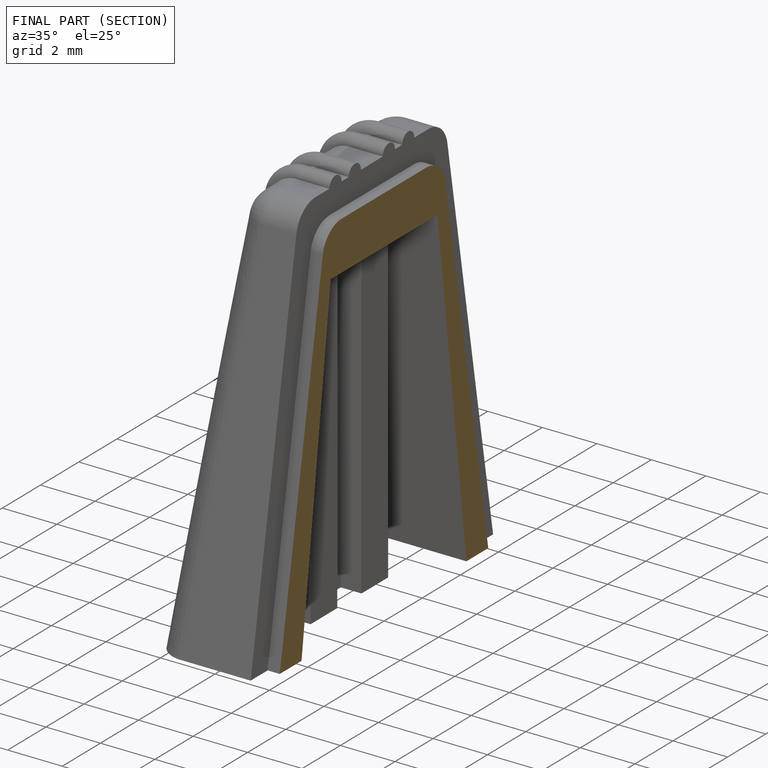
[diagram: finished part — half-section view (interior)]
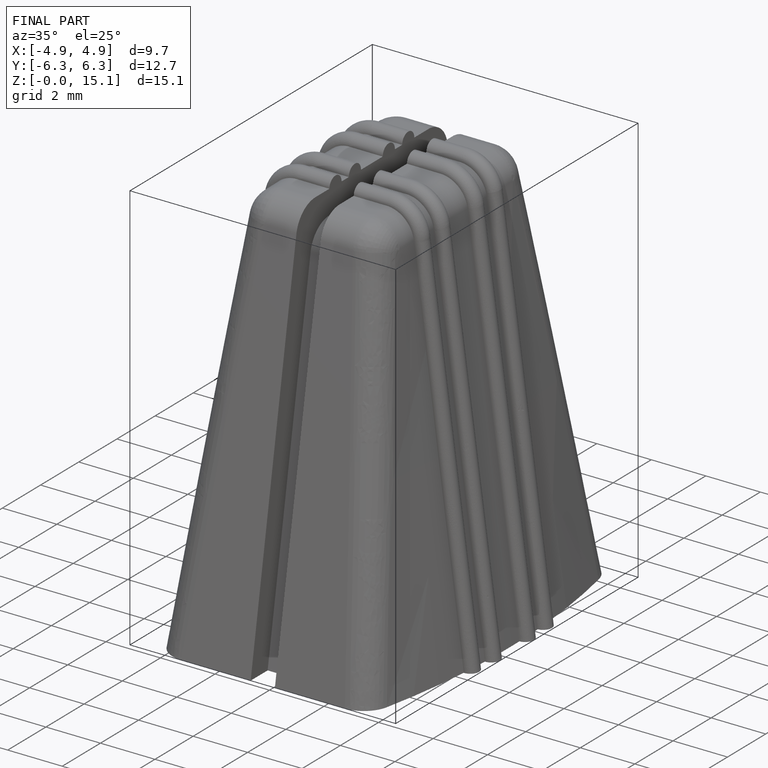
[diagram: finished part — iso view with bounding-box wireframe]
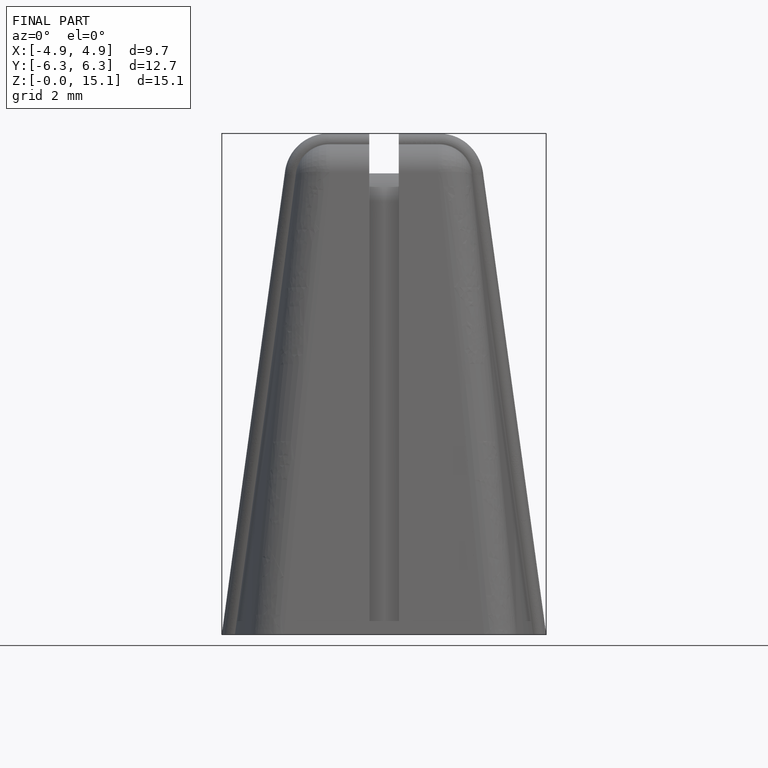
[diagram: finished part — front view with bounding-box wireframe]
